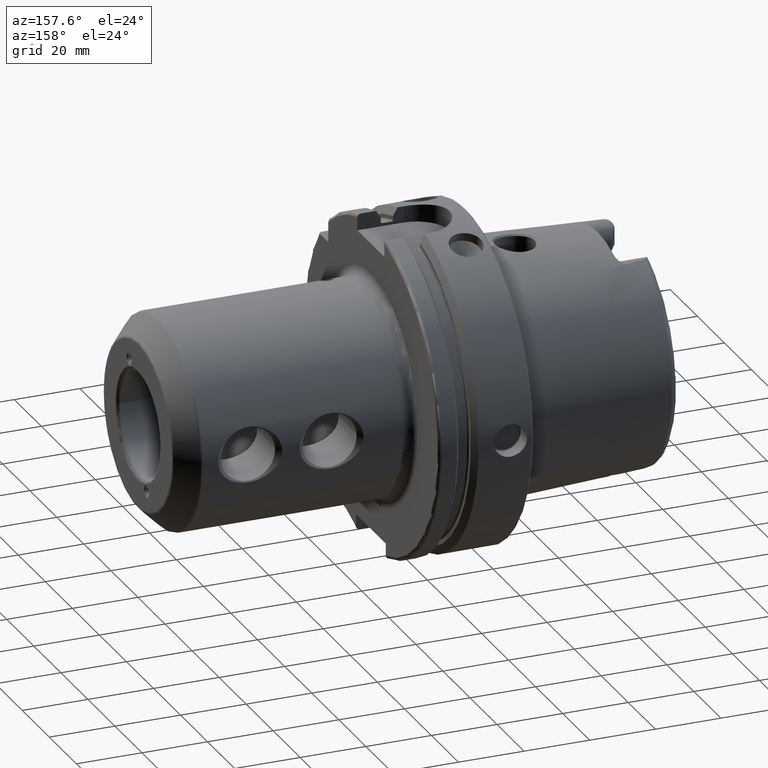
[diagram: clean part render]
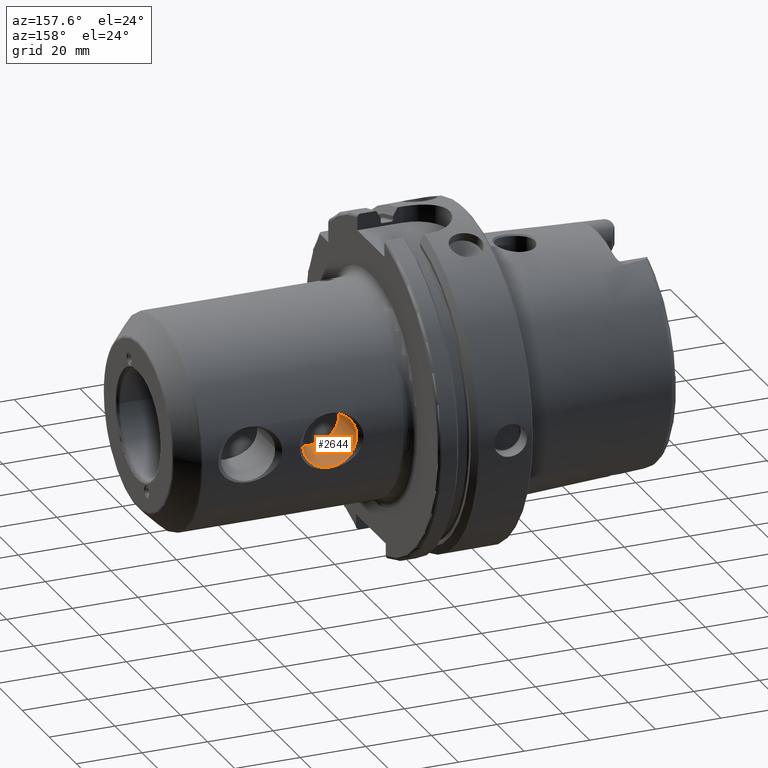
[diagram: same view with one face highlighted and labeled with its STEP entity id]
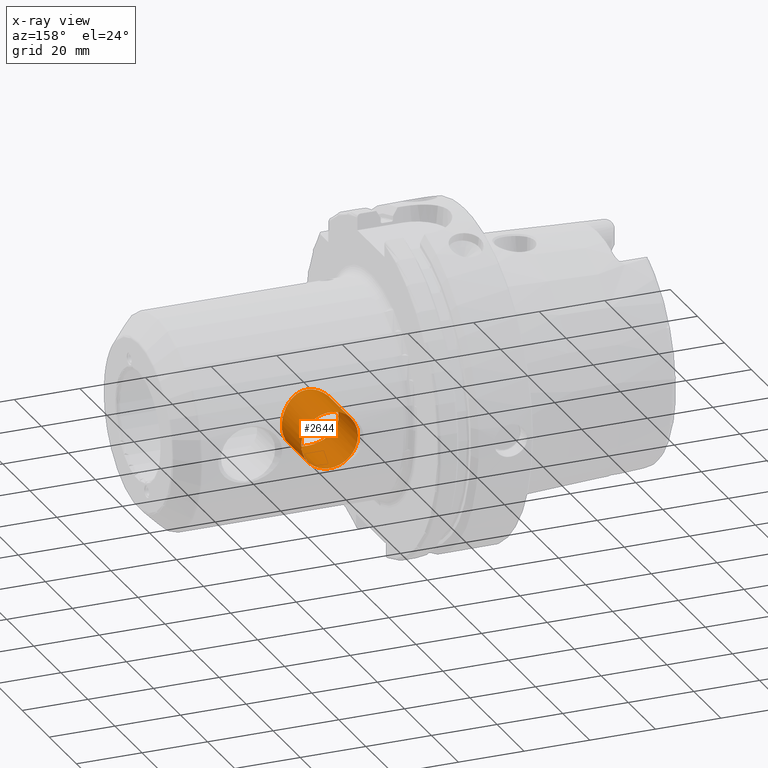
[diagram: x-ray of the same camera — body ghosted, the highlighted face saturated]
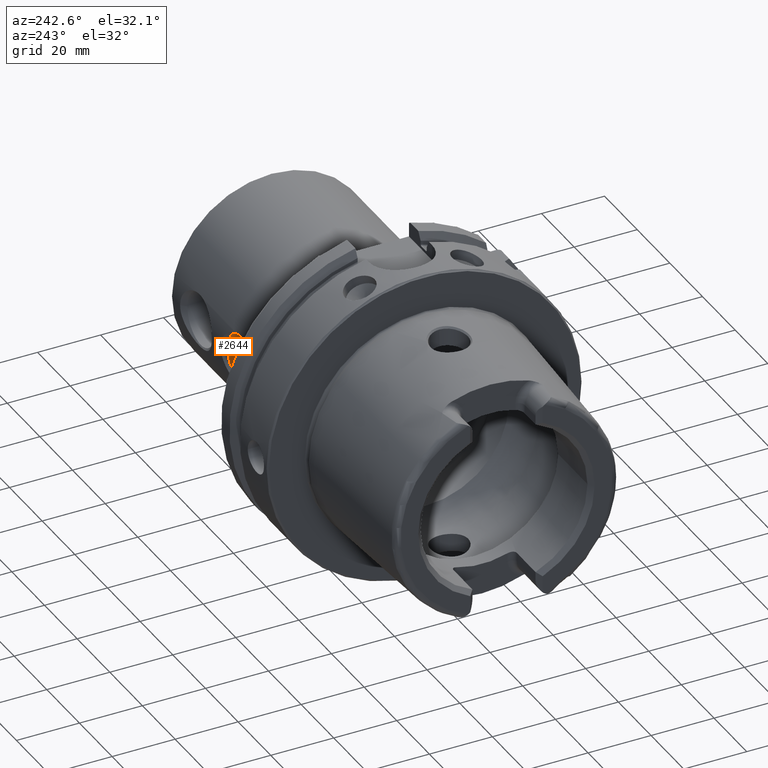
[diagram: same view with one face highlighted and labeled with its STEP entity id]
A machine part, auxiliary view. The second image highlights one B-rep face of the part: STEP entity #2644.
The next image is the same camera in x-ray: the body ghosted, the highlighted face saturated — about 0% of this face is hidden behind the body in this view.
A second angle (auxiliary view) of the same face is appended — the face is thin or edge-on in the first view.
In plain terms, the highlighted cylindrical surface (bore or boss wall) has radius 8.6614 mm, axis along (-0, 1, 0).
Its self-contained STEP definition (entity closure, byte-faithful):
#94=B_SPLINE_CURVE_WITH_KNOTS('',3,(#3958,#3959,#3960,#3961,#3962,#3963,
#3964,#3965,#3966,#3967,#3968,#3969,#3970,#3971,#3972,#3973,#3974,#3975,
#3976,#3977,#3978,#3979,#3980,#3981,#3982,#3983),.UNSPECIFIED.,.F.,.F.,
(4,2,2,2,2,2,2,2,2,2,2,2,4),(0.,0.335135655520429,0.670271311040858,1.00403758708355,
1.33780386312625,1.67157013916894,2.00533641521164,2.34047207073207,2.6756077262525,
3.01074338177292,3.34587903729335,3.67964531333605,4.01341158937874),
 .UNSPECIFIED.);
#95=B_SPLINE_CURVE_WITH_KNOTS('',3,(#3984,#3985,#3986,#3987,#3988,#3989,
#3990,#3991,#3992,#3993),.UNSPECIFIED.,.F.,.F.,(4,2,2,2,4),(4.01341158937874,
4.34717786542144,4.68094414146413,5.01607979698456,5.35121545250499),
 .UNSPECIFIED.);
#182=LINE('',#3956,#309);
#309=VECTOR('',#3155,8.6614);
#436=CYLINDRICAL_SURFACE('',#2809,8.6614);
#508=FACE_OUTER_BOUND('',#650,.T.);
#650=EDGE_LOOP('',(#1743,#1744,#1745,#1746,#1747,#1748));
#815=CIRCLE('',#2805,8.6614);
#816=CIRCLE('',#2806,8.6614);
#1006=VERTEX_POINT('',#3946);
#1007=VERTEX_POINT('',#3947);
#1010=VERTEX_POINT('',#3955);
#1011=VERTEX_POINT('',#3957);
#1308=EDGE_CURVE('',#1006,#1007,#815,.T.);
#1309=EDGE_CURVE('',#1007,#1006,#816,.T.);
#1312=EDGE_CURVE('',#1007,#1010,#182,.T.);
#1313=EDGE_CURVE('',#1011,#1010,#94,.T.);
#1314=EDGE_CURVE('',#1010,#1011,#95,.T.);
#1743=ORIENTED_EDGE('',*,*,#1308,.F.);
#1744=ORIENTED_EDGE('',*,*,#1309,.F.);
#1745=ORIENTED_EDGE('',*,*,#1312,.T.);
#1746=ORIENTED_EDGE('',*,*,#1313,.F.);
#1747=ORIENTED_EDGE('',*,*,#1314,.F.);
#1748=ORIENTED_EDGE('',*,*,#1312,.F.);
#2644=ADVANCED_FACE('',(#508),#436,.F.);
#2805=AXIS2_PLACEMENT_3D('',#3948,#3145,#3146);
#2806=AXIS2_PLACEMENT_3D('',#3949,#3147,#3148);
#2809=AXIS2_PLACEMENT_3D('',#3954,#3153,#3154);
#3145=DIRECTION('center_axis',(1.77042291002589E-16,-1.,0.));
#3146=DIRECTION('ref_axis',(1.,1.77042291002589E-16,0.));
#3147=DIRECTION('center_axis',(1.77042291002589E-16,-1.,0.));
#3148=DIRECTION('ref_axis',(1.,1.77042291002589E-16,0.));
#3153=DIRECTION('center_axis',(-1.77042291002589E-16,1.,0.));
#3154=DIRECTION('ref_axis',(1.,1.77042291002589E-16,0.));
#3155=DIRECTION('',(1.77042291002589E-16,-1.,0.));
#3946=CARTESIAN_POINT('',(62.7014,30.25,0.));
#3947=CARTESIAN_POINT('',(45.3786,30.25,1.06071557861349E-15));
#3948=CARTESIAN_POINT('Origin',(54.04,30.25,0.));
#3949=CARTESIAN_POINT('Origin',(54.04,30.25,0.));
#3954=CARTESIAN_POINT('Origin',(54.04,-175.908849110528,0.));
#3955=CARTESIAN_POINT('',(45.3786,15.875,5.30357789306745E-16));
#3956=CARTESIAN_POINT('',(45.3786,-175.908849110528,1.06071557861349E-15));
#3957=CARTESIAN_POINT('',(54.04,13.3039759109824,8.6614));
#3958=CARTESIAN_POINT('Ctrl Pts',(54.04,13.3039759109824,8.6614));
#3959=CARTESIAN_POINT('Ctrl Pts',(55.1571188517347,13.3039759109824,8.6614));
#3960=CARTESIAN_POINT('Ctrl Pts',(56.3261179930749,13.4596424228962,8.43319660129859));
#3961=CARTESIAN_POINT('Ctrl Pts',(58.4496105287369,13.9778479980301,7.54324290825644));
#3962=CARTESIAN_POINT('Ctrl Pts',(59.4070339561558,14.3292484464552,6.88203539298256));
#3963=CARTESIAN_POINT('Ctrl Pts',(60.9189402107151,14.9614834588892,5.37012913842324));
#3964=CARTESIAN_POINT('Ctrl Pts',(61.5823718169413,15.2884598474176,4.41173993002516));
#3965=CARTESIAN_POINT('Ctrl Pts',(62.4741890124335,15.7475449872049,2.28369910750551));
#3966=CARTESIAN_POINT('Ctrl Pts',(62.7014,15.875,1.11255425347565));
#3967=CARTESIAN_POINT('Ctrl Pts',(62.7014,15.875,-1.11255425347565));
#3968=CARTESIAN_POINT('Ctrl Pts',(62.4741890124335,15.7475449872049,-2.28369910750551));
#3969=CARTESIAN_POINT('Ctrl Pts',(61.5823718169413,15.2884598474176,-4.41173993002517));
#3970=CARTESIAN_POINT('Ctrl Pts',(60.9189402107151,14.9614834588892,-5.37012913842324));
#3971=CARTESIAN_POINT('Ctrl Pts',(59.4070339561558,14.3292484464552,-6.88203539298256));
#3972=CARTESIAN_POINT('Ctrl Pts',(58.4496105287369,13.9778479980301,-7.54324290825644));
#3973=CARTESIAN_POINT('Ctrl Pts',(56.3261179930749,13.4596424228962,-8.43319660129859));
#3974=CARTESIAN_POINT('Ctrl Pts',(55.1571188517347,13.3039759109824,-8.6614));
#3975=CARTESIAN_POINT('Ctrl Pts',(52.9228811482652,13.3039759109824,-8.6614));
#3976=CARTESIAN_POINT('Ctrl Pts',(51.7538820069251,13.4596424228962,-8.43319660129859));
#3977=CARTESIAN_POINT('Ctrl Pts',(49.630389471263,13.9778479980301,-7.54324290825644));
#3978=CARTESIAN_POINT('Ctrl Pts',(48.6729660438442,14.3292484464552,-6.88203539298256));
#3979=CARTESIAN_POINT('Ctrl Pts',(47.1610597892849,14.9614834588892,-5.37012913842324));
#3980=CARTESIAN_POINT('Ctrl Pts',(46.4976281830587,15.2884598474176,-4.41173993002517));
#3981=CARTESIAN_POINT('Ctrl Pts',(45.6058109875665,15.7475449872049,-2.28369910750551));
#3982=CARTESIAN_POINT('Ctrl Pts',(45.3786,15.875,-1.11255425347565));
#3983=CARTESIAN_POINT('Ctrl Pts',(45.3786,15.875,1.11022302462516E-15));
#3984=CARTESIAN_POINT('Ctrl Pts',(45.3786,15.875,3.7470027081099E-15));
#3985=CARTESIAN_POINT('Ctrl Pts',(45.3786,15.875,1.11255425347565));
#3986=CARTESIAN_POINT('Ctrl Pts',(45.6058109875665,15.7475449872049,2.28369910750551));
#3987=CARTESIAN_POINT('Ctrl Pts',(46.4976281830587,15.2884598474176,4.41173993002517));
#3988=CARTESIAN_POINT('Ctrl Pts',(47.1610597892849,14.9614834588892,5.37012913842324));
#3989=CARTESIAN_POINT('Ctrl Pts',(48.6729660438442,14.3292484464552,6.88203539298256));
#3990=CARTESIAN_POINT('Ctrl Pts',(49.630389471263,13.9778479980301,7.54324290825643));
#3991=CARTESIAN_POINT('Ctrl Pts',(51.7538820069251,13.4596424228962,8.43319660129858));
#3992=CARTESIAN_POINT('Ctrl Pts',(52.9228811482652,13.3039759109824,8.6614));
#3993=CARTESIAN_POINT('Ctrl Pts',(54.04,13.3039759109824,8.6614));